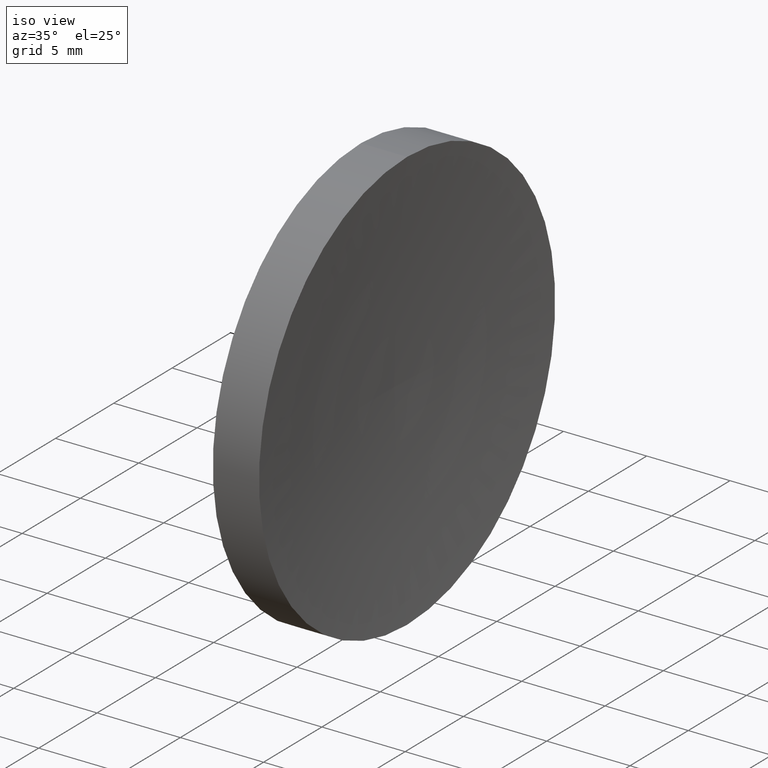
[diagram: clean part render]
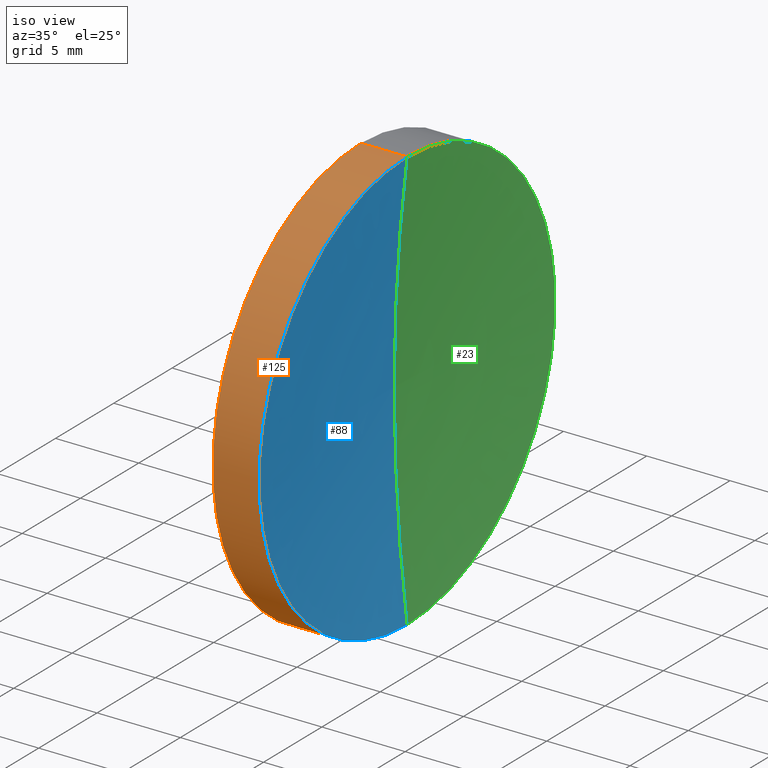
[diagram: same view with three faces highlighted in distinct colors, each labeled with its STEP entity id]
A machine part, iso view with three faces highlighted in distinct colors.
Their STEP definitions:

[orange] entity #125 — the highlighted cylindrical surface (partial cylindrical patch) has radius 12.7 mm, axis along (-1, -0, -0).
#3 = CARTESIAN_POINT ( 'NONE',  ( 111.9552297575605700, 71.19398908659370300, 0.0000000000000000000 ) ) ;
#6 = ORIENTED_EDGE ( 'NONE', *, *, #164, .T. ) ;
#8 = DIRECTION ( 'NONE',  ( -1.000000000000000000, -0.0000000000000000000, -0.0000000000000000000 ) ) ;
#12 = EDGE_CURVE ( 'NONE', #114, #44, #48, .T. ) ;
#13 = ORIENTED_EDGE ( 'NONE', *, *, #157, .T. ) ;
#15 = ORIENTED_EDGE ( 'NONE', *, *, #137, .F. ) ;
#20 = LINE ( 'NONE', #127, #103 ) ;
#24 = DIRECTION ( 'NONE',  ( 0.0000000000000000000, 0.0000000000000000000, 1.000000000000000000 ) ) ;
#26 = DIRECTION ( 'NONE',  ( 0.0000000000000000000, 0.0000000000000000000, 1.000000000000000000 ) ) ;
#29 = DIRECTION ( 'NONE',  ( -1.000000000000000000, -0.0000000000000000000, -0.0000000000000000000 ) ) ;
#30 = CARTESIAN_POINT ( 'NONE',  ( 111.9552297575605700, 71.19398908659370300, -12.70000000000000300 ) ) ;
#32 = CIRCLE ( 'NONE', #98, 12.70000000000000300 ) ;
#34 = VERTEX_POINT ( 'NONE', #122 ) ;
#44 = VERTEX_POINT ( 'NONE', #165 ) ;
#48 = LINE ( 'NONE', #30, #145 ) ;
#52 = CYLINDRICAL_SURFACE ( 'NONE', #106, 12.70000000000000300 ) ;
#59 = CARTESIAN_POINT ( 'NONE',  ( 122.2810793820639900, 71.19398908659370300, 0.0000000000000000000 ) ) ;
#70 = CARTESIAN_POINT ( 'NONE',  ( 122.2810793820639900, 71.19398908659370300, 12.70000000000004700 ) ) ;
#75 = DIRECTION ( 'NONE',  ( -1.000000000000000000, -0.0000000000000000000, -0.0000000000000000000 ) ) ;
#93 = FACE_OUTER_BOUND ( 'NONE', #124, .T. ) ;
#98 = AXIS2_PLACEMENT_3D ( 'NONE', #132, #159, #24 ) ;
#103 = VECTOR ( 'NONE', #8, 1000.000000000000000 ) ;
#106 = AXIS2_PLACEMENT_3D ( 'NONE', #3, #156, #126 ) ;
#114 = VERTEX_POINT ( 'NONE', #139 ) ;
#122 = CARTESIAN_POINT ( 'NONE',  ( 119.5068341785477100, 71.19398908659370300, 12.70000000000000300 ) ) ;
#124 = EDGE_LOOP ( 'NONE', ( #142, #6, #13, #15 ) ) ;
#125 = ADVANCED_FACE ( 'NONE', ( #93 ), #52, .T. ) ;
#126 = DIRECTION ( 'NONE',  ( 0.0000000000000000000, 0.0000000000000000000, 1.000000000000000000 ) ) ;
#127 = CARTESIAN_POINT ( 'NONE',  ( 111.9552297575605700, 71.19398908659370300, 12.70000000000000300 ) ) ;
#131 = VERTEX_POINT ( 'NONE', #70 ) ;
#132 = CARTESIAN_POINT ( 'NONE',  ( 119.5068341785477100, 71.19398908659370300, 0.0000000000000000000 ) ) ;
#137 = EDGE_CURVE ( 'NONE', #44, #34, #32, .T. ) ;
#139 = CARTESIAN_POINT ( 'NONE',  ( 122.2810793820639900, 71.19398908659370300, -12.70000000000004700 ) ) ;
#140 = AXIS2_PLACEMENT_3D ( 'NONE', #59, #75, #26 ) ;
#142 = ORIENTED_EDGE ( 'NONE', *, *, #12, .F. ) ;
#145 = VECTOR ( 'NONE', #29, 1000.000000000000000 ) ;
#156 = DIRECTION ( 'NONE',  ( -1.000000000000000000, -0.0000000000000000000, -0.0000000000000000000 ) ) ;
#157 = EDGE_CURVE ( 'NONE', #131, #34, #20, .T. ) ;
#159 = DIRECTION ( 'NONE',  ( -1.000000000000000000, -0.0000000000000000000, -0.0000000000000000000 ) ) ;
#161 = CIRCLE ( 'NONE', #140, 12.70000000000000300 ) ;
#164 = EDGE_CURVE ( 'NONE', #114, #131, #161, .T. ) ;
#165 = CARTESIAN_POINT ( 'NONE',  ( 119.5068341785477100, 71.19398908659370300, -12.70000000000000300 ) ) ;

[blue] entity #88 — the highlighted toroidal blend (fillet) surface has major radius 0.0398 mm and minor (blend) radius 105.2 mm.
#2 = CARTESIAN_POINT ( 'NONE',  ( 226.7068266378696800, 71.19398908659370300, 0.0000000000000000000 ) ) ;
#9 = DIRECTION ( 'NONE',  ( 0.0000000000000000000, -1.319181350552676200E-016, 1.000000000000000000 ) ) ;
#26 = DIRECTION ( 'NONE',  ( 0.0000000000000000000, 0.0000000000000000000, 1.000000000000000000 ) ) ;
#46 = CARTESIAN_POINT ( 'NONE',  ( 121.5068341785476800, 71.19398908659370300, 0.0000000000000000000 ) ) ;
#49 = CARTESIAN_POINT ( 'NONE',  ( 226.7068266378696800, 71.19398908659370300, -0.03983163417291268900 ) ) ;
#53 = EDGE_LOOP ( 'NONE', ( #82, #163, #73 ) ) ;
#59 = CARTESIAN_POINT ( 'NONE',  ( 122.2810793820639900, 71.19398908659370300, 0.0000000000000000000 ) ) ;
#66 = DIRECTION ( 'NONE',  ( -1.000000000000000000, -0.0000000000000000000, -0.0000000000000000000 ) ) ;
#70 = CARTESIAN_POINT ( 'NONE',  ( 122.2810793820639900, 71.19398908659370300, 12.70000000000004700 ) ) ;
#72 = FACE_OUTER_BOUND ( 'NONE', #53, .T. ) ;
#73 = ORIENTED_EDGE ( 'NONE', *, *, #149, .F. ) ;
#75 = DIRECTION ( 'NONE',  ( -1.000000000000000000, -0.0000000000000000000, -0.0000000000000000000 ) ) ;
#79 = AXIS2_PLACEMENT_3D ( 'NONE', #2, #66, #83 ) ;
#82 = ORIENTED_EDGE ( 'NONE', *, *, #164, .F. ) ;
#83 = DIRECTION ( 'NONE',  ( 0.0000000000000000000, 0.0000000000000000000, 1.000000000000000000 ) ) ;
#85 = CIRCLE ( 'NONE', #121, 105.2000000000022900 ) ;
#88 = ADVANCED_FACE ( 'NONE', ( #72 ), #147, .F. ) ;
#102 = DIRECTION ( 'NONE',  ( -0.0000000000000000000, 1.000000000000000000, 1.224646799147353200E-016 ) ) ;
#104 = VERTEX_POINT ( 'NONE', #46 ) ;
#111 = AXIS2_PLACEMENT_3D ( 'NONE', #113, #102, #9 ) ;
#113 = CARTESIAN_POINT ( 'NONE',  ( 226.7068266378696800, 71.19398908659370300, 0.03983163417291268900 ) ) ;
#114 = VERTEX_POINT ( 'NONE', #139 ) ;
#121 = AXIS2_PLACEMENT_3D ( 'NONE', #49, #143, #160 ) ;
#130 = CIRCLE ( 'NONE', #111, 105.2000000000022900 ) ;
#131 = VERTEX_POINT ( 'NONE', #70 ) ;
#139 = CARTESIAN_POINT ( 'NONE',  ( 122.2810793820639900, 71.19398908659370300, -12.70000000000004700 ) ) ;
#140 = AXIS2_PLACEMENT_3D ( 'NONE', #59, #75, #26 ) ;
#143 = DIRECTION ( 'NONE',  ( 0.0000000000000000000, -1.000000000000000000, 0.0000000000000000000 ) ) ;
#146 = EDGE_CURVE ( 'NONE', #114, #104, #130, .T. ) ;
#147 = TOROIDAL_SURFACE ( 'NONE', #79, -0.03983163417291268900, 105.2000000000022900 ) ;
#149 = EDGE_CURVE ( 'NONE', #131, #104, #85, .T. ) ;
#160 = DIRECTION ( 'NONE',  ( 0.0000000000000000000, 0.0000000000000000000, -1.000000000000000000 ) ) ;
#161 = CIRCLE ( 'NONE', #140, 12.70000000000000300 ) ;
#163 = ORIENTED_EDGE ( 'NONE', *, *, #146, .T. ) ;
#164 = EDGE_CURVE ( 'NONE', #114, #131, #161, .T. ) ;

[green] entity #23 — the highlighted toroidal blend (fillet) surface has major radius 0.0398 mm and minor (blend) radius 105.2 mm.
#5 = EDGE_CURVE ( 'NONE', #131, #114, #148, .T. ) ;
#9 = DIRECTION ( 'NONE',  ( 0.0000000000000000000, -1.319181350552676200E-016, 1.000000000000000000 ) ) ;
#16 = FACE_OUTER_BOUND ( 'NONE', #61, .T. ) ;
#23 = ADVANCED_FACE ( 'NONE', ( #16 ), #65, .F. ) ;
#41 = ORIENTED_EDGE ( 'NONE', *, *, #5, .F. ) ;
#42 = DIRECTION ( 'NONE',  ( 0.0000000000000000000, 0.0000000000000000000, 1.000000000000000000 ) ) ;
#46 = CARTESIAN_POINT ( 'NONE',  ( 121.5068341785476800, 71.19398908659370300, 0.0000000000000000000 ) ) ;
#49 = CARTESIAN_POINT ( 'NONE',  ( 226.7068266378696800, 71.19398908659370300, -0.03983163417291268900 ) ) ;
#55 = AXIS2_PLACEMENT_3D ( 'NONE', #109, #96, #42 ) ;
#56 = DIRECTION ( 'NONE',  ( 0.0000000000000000000, 0.0000000000000000000, 1.000000000000000000 ) ) ;
#61 = EDGE_LOOP ( 'NONE', ( #110, #41, #89 ) ) ;
#65 = TOROIDAL_SURFACE ( 'NONE', #116, -0.03983163417291268900, 105.2000000000022900 ) ;
#70 = CARTESIAN_POINT ( 'NONE',  ( 122.2810793820639900, 71.19398908659370300, 12.70000000000004700 ) ) ;
#85 = CIRCLE ( 'NONE', #121, 105.2000000000022900 ) ;
#89 = ORIENTED_EDGE ( 'NONE', *, *, #149, .T. ) ;
#96 = DIRECTION ( 'NONE',  ( -1.000000000000000000, -0.0000000000000000000, -0.0000000000000000000 ) ) ;
#102 = DIRECTION ( 'NONE',  ( -0.0000000000000000000, 1.000000000000000000, 1.224646799147353200E-016 ) ) ;
#104 = VERTEX_POINT ( 'NONE', #46 ) ;
#108 = CARTESIAN_POINT ( 'NONE',  ( 226.7068266378696800, 71.19398908659370300, 0.0000000000000000000 ) ) ;
#109 = CARTESIAN_POINT ( 'NONE',  ( 122.2810793820639900, 71.19398908659370300, 0.0000000000000000000 ) ) ;
#110 = ORIENTED_EDGE ( 'NONE', *, *, #146, .F. ) ;
#111 = AXIS2_PLACEMENT_3D ( 'NONE', #113, #102, #9 ) ;
#113 = CARTESIAN_POINT ( 'NONE',  ( 226.7068266378696800, 71.19398908659370300, 0.03983163417291268900 ) ) ;
#114 = VERTEX_POINT ( 'NONE', #139 ) ;
#116 = AXIS2_PLACEMENT_3D ( 'NONE', #108, #151, #56 ) ;
#121 = AXIS2_PLACEMENT_3D ( 'NONE', #49, #143, #160 ) ;
#130 = CIRCLE ( 'NONE', #111, 105.2000000000022900 ) ;
#131 = VERTEX_POINT ( 'NONE', #70 ) ;
#139 = CARTESIAN_POINT ( 'NONE',  ( 122.2810793820639900, 71.19398908659370300, -12.70000000000004700 ) ) ;
#143 = DIRECTION ( 'NONE',  ( 0.0000000000000000000, -1.000000000000000000, 0.0000000000000000000 ) ) ;
#146 = EDGE_CURVE ( 'NONE', #114, #104, #130, .T. ) ;
#148 = CIRCLE ( 'NONE', #55, 12.70000000000000300 ) ;
#149 = EDGE_CURVE ( 'NONE', #131, #104, #85, .T. ) ;
#151 = DIRECTION ( 'NONE',  ( -1.000000000000000000, -0.0000000000000000000, -0.0000000000000000000 ) ) ;
#160 = DIRECTION ( 'NONE',  ( 0.0000000000000000000, 0.0000000000000000000, -1.000000000000000000 ) ) ;